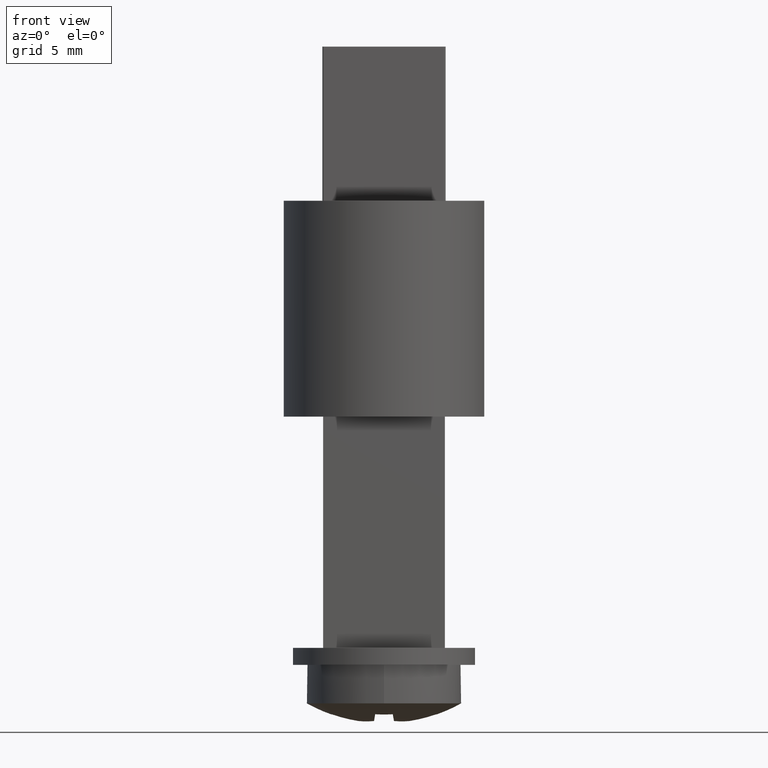
[diagram: clean part render]
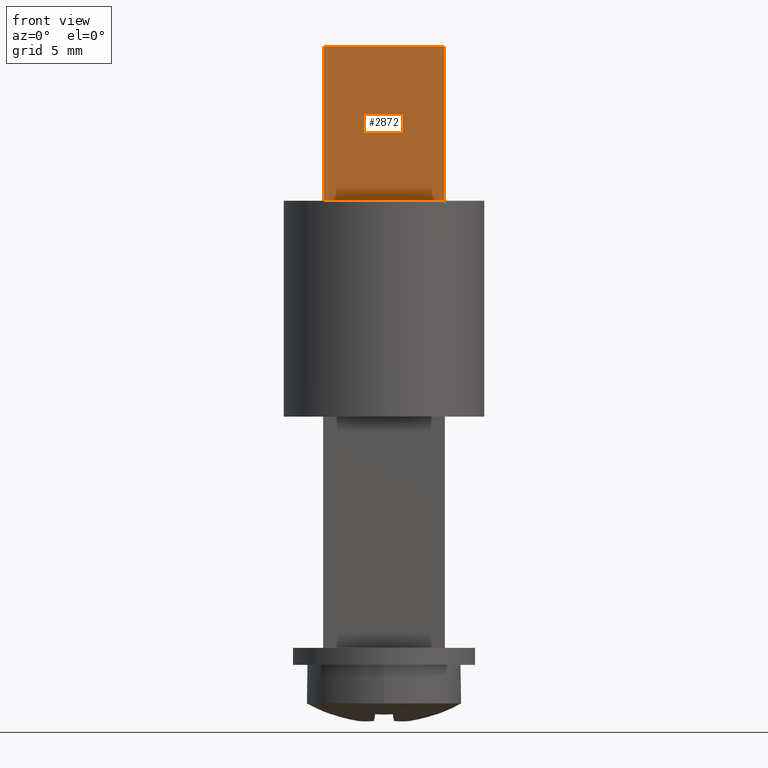
[diagram: same view with one face highlighted and labeled with its STEP entity id]
A machine part, front view. The second image highlights one B-rep face of the part: STEP entity #2872.
In plain terms, the highlighted planar face has unit normal (-0, 1, 0).
Its self-contained STEP definition (entity closure, byte-faithful):
#948 = DIRECTION ( 'NONE',  ( 1.000000000000000000, 1.112002228190260952E-16, 0.000000000000000000 ) ) ;
#2431 = CARTESIAN_POINT ( 'NONE',  ( -3.899999999999999911, -2.351666049839540307, 7.000000000000000000 ) ) ;
#2872 = ADVANCED_FACE ( 'NONE', ( #14700 ), #8332, .F. ) ;
#2903 = EDGE_CURVE ( 'NONE', #4278, #16271, #7596, .T. ) ;
#3007 = VERTEX_POINT ( 'NONE', #2431 ) ;
#3041 = VECTOR ( 'NONE', #6031, 1000.000000000000000 ) ;
#3452 = EDGE_CURVE ( 'NONE', #3007, #7416, #4839, .T. ) ;
#3540 = CARTESIAN_POINT ( 'NONE',  ( -3.899999999999999911, -2.351666049839540307, 17.00000000000000000 ) ) ;
#3577 = EDGE_CURVE ( 'NONE', #4278, #3007, #7986, .T. ) ;
#3647 = VECTOR ( 'NONE', #948, 1000.000000000000000 ) ;
#4257 = VECTOR ( 'NONE', #5536, 1000.000000000000000 ) ;
#4266 = DIRECTION ( 'NONE',  ( -1.112002228190260952E-16, 1.000000000000000000, 0.000000000000000000 ) ) ;
#4278 = VERTEX_POINT ( 'NONE', #9903 ) ;
#4637 = CARTESIAN_POINT ( 'NONE',  ( -3.899999999999999911, -2.351666049839540307, 7.000000000000000000 ) ) ;
#4839 = LINE ( 'NONE', #4637, #3647 ) ;
#5075 = EDGE_CURVE ( 'NONE', #16271, #7416, #11905, .T. ) ;
#5536 = DIRECTION ( 'NONE',  ( 1.000000000000000000, 1.112002228190260952E-16, 0.000000000000000000 ) ) ;
#6031 = DIRECTION ( 'NONE',  ( -0.000000000000000000, -0.000000000000000000, -1.000000000000000000 ) ) ;
#7075 = CARTESIAN_POINT ( 'NONE',  ( -3.899999999999999911, -2.351666049839540307, 17.00000000000000000 ) ) ;
#7416 = VERTEX_POINT ( 'NONE', #12426 ) ;
#7596 = LINE ( 'NONE', #7075, #4257 ) ;
#7845 = DIRECTION ( 'NONE',  ( -1.000000000000000000, -1.112002228190260952E-16, 0.000000000000000000 ) ) ;
#7986 = LINE ( 'NONE', #3540, #3041 ) ;
#8332 = PLANE ( 'NONE',  #8679 ) ;
#8498 = DIRECTION ( 'NONE',  ( -0.000000000000000000, -0.000000000000000000, -1.000000000000000000 ) ) ;
#8553 = VECTOR ( 'NONE', #8498, 1000.000000000000000 ) ;
#8638 = ORIENTED_EDGE ( 'NONE', *, *, #2903, .F. ) ;
#8679 = AXIS2_PLACEMENT_3D ( 'NONE', #12216, #4266, #7845 ) ;
#9903 = CARTESIAN_POINT ( 'NONE',  ( -3.899999999999999911, -2.351666049839540307, 17.00000000000000000 ) ) ;
#10175 = ORIENTED_EDGE ( 'NONE', *, *, #3577, .T. ) ;
#10624 = ORIENTED_EDGE ( 'NONE', *, *, #5075, .F. ) ;
#11208 = ORIENTED_EDGE ( 'NONE', *, *, #3452, .T. ) ;
#11905 = LINE ( 'NONE', #16203, #8553 ) ;
#12000 = EDGE_LOOP ( 'NONE', ( #11208, #10624, #8638, #10175 ) ) ;
#12216 = CARTESIAN_POINT ( 'NONE',  ( -3.899999999999999911, -2.351666049839540307, 17.00000000000000000 ) ) ;
#12426 = CARTESIAN_POINT ( 'NONE',  ( 3.900000000000000799, -2.351666049839539419, 7.000000000000000000 ) ) ;
#14700 = FACE_OUTER_BOUND ( 'NONE', #12000, .T. ) ;
#15806 = CARTESIAN_POINT ( 'NONE',  ( 3.900000000000000799, -2.351666049839539419, 17.00000000000000000 ) ) ;
#16203 = CARTESIAN_POINT ( 'NONE',  ( 3.900000000000000799, -2.351666049839539419, 17.00000000000000000 ) ) ;
#16271 = VERTEX_POINT ( 'NONE', #15806 ) ;